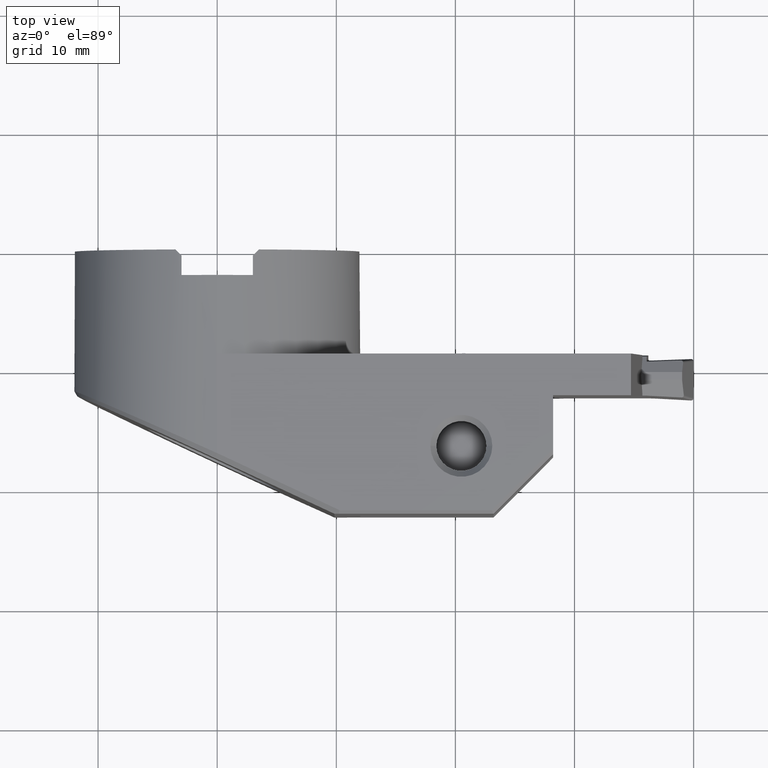
[diagram: clean part render]
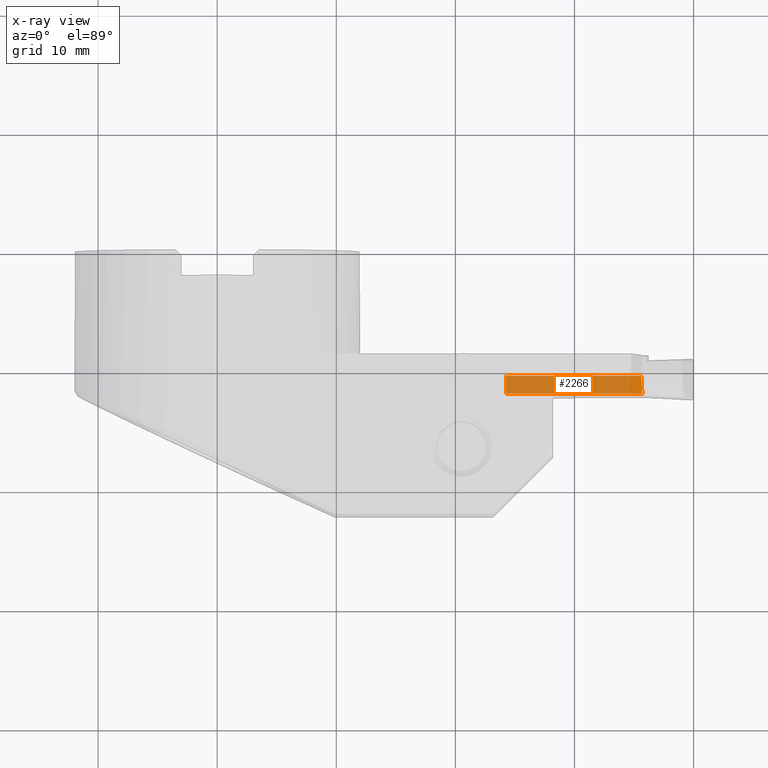
[diagram: x-ray — body ghosted, one internal face saturated and labeled with its STEP entity id]
A machine part, top view, then the same camera in x-ray: the body is ghosted and one INTERNAL B-rep face — a face not visible from any outside direction — is saturated and labeled: STEP entity #2266.
In plain terms, the highlighted planar face has unit normal (0, -0.5, 0.866).
Its self-contained STEP definition (entity closure, byte-faithful):
#1240=VERTEX_POINT('NONE',#2830);
#1358=VERTEX_POINT('NONE',#2958);
#1450=VERTEX_POINT('NONE',#3062);
#1616=EDGE_CURVE('NONE',#1450,#2104,#3242,.F.);
#1640=EDGE_CURVE('NONE',#1240,#1358,#3267,.F.);
#1796=EDGE_CURVE('NONE',#2104,#1240,#3435,.F.);
#2104=VERTEX_POINT('NONE',#3782);
#2134=EDGE_CURVE('NONE',#1450,#1358,#3814,.F.);
#2266=ADVANCED_FACE('Fl�che6',(#3959),#3960,.F.);
#2830=CARTESIAN_POINT('',(35.7,-11.9744863728671,4.195));
#2958=CARTESIAN_POINT('',(35.5956331232325,-10.5022431864336,5.045));
#3062=CARTESIAN_POINT('',(24.2403,-10.5022431864336,5.045));
#3242=LINE('',#5629,#5630);
#3267=LINE('',#5706,#5707);
#3435=LINE('',#6030,#6031);
#3782=CARTESIAN_POINT('',(24.2403,-11.9744863728671,4.195));
#3814=LINE('',#6720,#6721);
#3959=FACE_OUTER_BOUND('',#7003,.T.);
#3960=PLANE('',#7004);
#5629=CARTESIAN_POINT('',(24.2403,-12.4528039830614,3.9188431989962));
#5630=VECTOR('',#8089,1.0);
#5706=CARTESIAN_POINT('',(35.8250758525575,-13.738859107,3.17633892699755));
#5707=VECTOR('',#8102,1.0);
#6030=CARTESIAN_POINT('',(30.0877907079278,-11.9744863728671,4.195));
#6031=VECTOR('',#8264,1.0);
#6720=CARTESIAN_POINT('',(21.1755814158556,-10.5022431864336,5.045));
#6721=VECTOR('',#8714,1.0);
#7003=EDGE_LOOP('',(#8881,#8882,#8883,#8884));
#7004=AXIS2_PLACEMENT_3D('',#8885,#8886,#8887);
#8089=DIRECTION('',(1.91682152041635E-015,0.866025403784441,0.499999999999996));
#8102=DIRECTION('',(0.0612769123431552,-0.864397972585701,-0.499060402159316));
#8264=DIRECTION('',(-1.0,-2.24961806581915E-047,-1.29881759587452E-047));
#8714=DIRECTION('',(-1.0,-0.0,0.0));
#8881=ORIENTED_EDGE('',*,*,#2134,.T.);
#8882=ORIENTED_EDGE('',*,*,#1640,.F.);
#8883=ORIENTED_EDGE('',*,*,#1796,.F.);
#8884=ORIENTED_EDGE('',*,*,#1616,.F.);
#8885=CARTESIAN_POINT('',(21.1755814158556,-11.9744863728671,4.195));
#8886=DIRECTION('',(0.0,-0.499999999999996,0.866025403784441));
#8887=DIRECTION('',(-1.0,0.0,0.0));